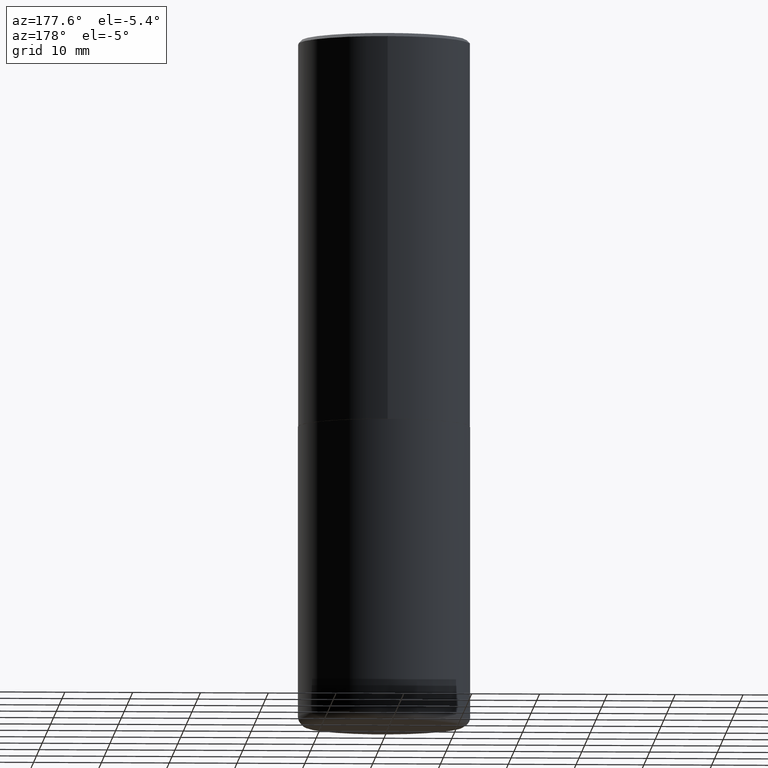
[diagram: clean part render]
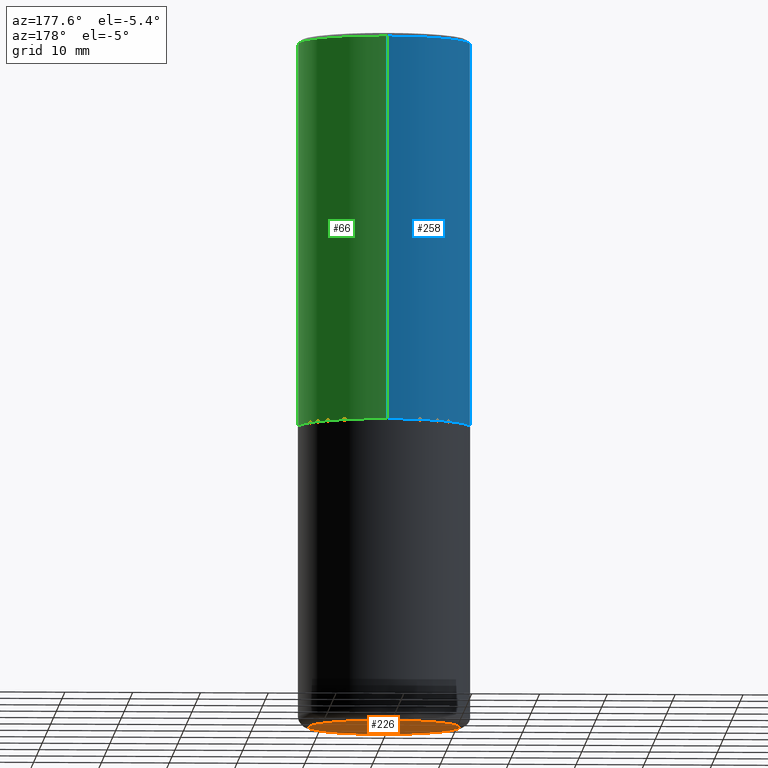
[diagram: same view with three faces highlighted in distinct colors, each labeled with its STEP entity id]
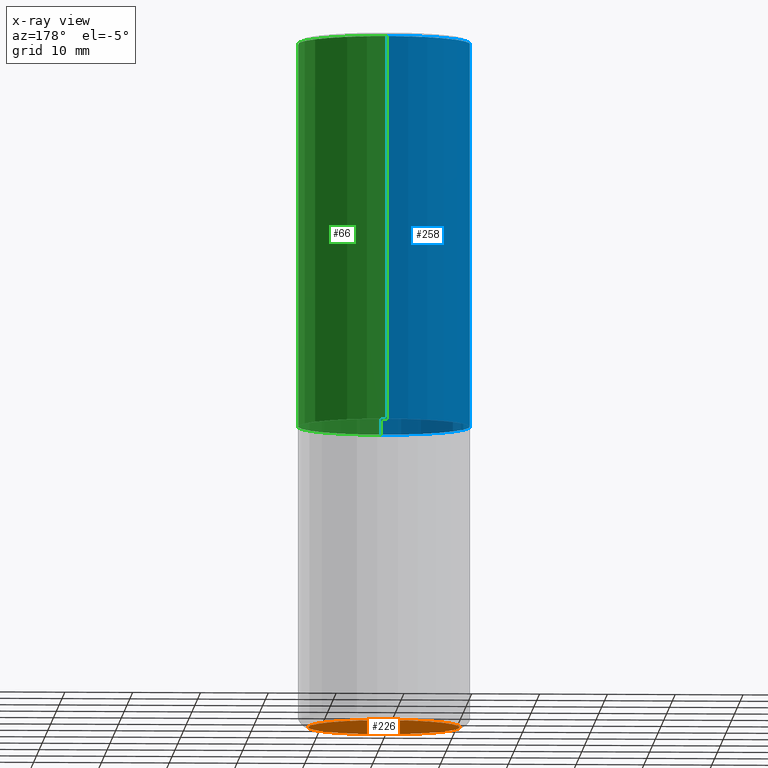
[diagram: x-ray of the same camera — body ghosted, the three highlighted faces saturated]
A machine part, auxiliary view with three faces highlighted in distinct colors.
The next image is the same camera in x-ray (body ghosted, the three faces saturated) — at least one of them is partly hidden behind the body in this view.
Their STEP definitions:

[orange] entity #226 — the highlighted planar face has unit normal (0, -0, -1).
#55 = CARTESIAN_POINT ( 'NONE',  ( 0.4400000000000000022, -1.703842893355454063E-14, -4.000000000000000000 ) ) ;
#56 = AXIS2_PLACEMENT_3D ( 'NONE', #163, #361, #331 ) ;
#65 = DIRECTION ( 'NONE',  ( -2.445468806185136597E-29, 3.491481338843145583E-15, 1.000000000000000000 ) ) ;
#70 = DIRECTION ( 'NONE',  ( 1.000000000000000000, -6.982962677686266711E-15, 0.000000000000000000 ) ) ;
#79 = FACE_OUTER_BOUND ( 'NONE', #190, .T. ) ;
#109 = CARTESIAN_POINT ( 'NONE',  ( 9.781875224740546387E-29, -1.396592535537258233E-14, -4.000000000000000000 ) ) ;
#150 = VERTEX_POINT ( 'NONE', #55 ) ;
#153 = ORIENTED_EDGE ( 'NONE', *, *, #195, .F. ) ;
#155 = DIRECTION ( 'NONE',  ( 1.000000000000000000, -6.982962677686266711E-15, 0.000000000000000000 ) ) ;
#163 = CARTESIAN_POINT ( 'NONE',  ( 9.781875224740546387E-29, -1.396592535537258233E-14, -4.000000000000000000 ) ) ;
#188 = ORIENTED_EDGE ( 'NONE', *, *, #415, .F. ) ;
#190 = EDGE_LOOP ( 'NONE', ( #188, #153 ) ) ;
#195 = EDGE_CURVE ( 'NONE', #391, #150, #261, .T. ) ;
#226 = ADVANCED_FACE ( 'NONE', ( #79 ), #239, .T. ) ;
#239 = PLANE ( 'NONE',  #56 ) ;
#249 = AXIS2_PLACEMENT_3D ( 'NONE', #109, #357, #70 ) ;
#261 = CIRCLE ( 'NONE', #249, 0.4400000000000000022 ) ;
#331 = DIRECTION ( 'NONE',  ( -1.000000000000000000, 6.982962677686265922E-15, -4.876176775795935793E-29 ) ) ;
#350 = CARTESIAN_POINT ( 'NONE',  ( 9.781875224740546387E-29, -1.396592535537258233E-14, -4.000000000000000000 ) ) ;
#357 = DIRECTION ( 'NONE',  ( -2.445468806185136597E-29, 3.491481338843145583E-15, 1.000000000000000000 ) ) ;
#361 = DIRECTION ( 'NONE',  ( 2.438088387897960049E-29, -3.491481338843145188E-15, -1.000000000000000000 ) ) ;
#370 = AXIS2_PLACEMENT_3D ( 'NONE', #350, #65, #155 ) ;
#386 = CIRCLE ( 'NONE', #370, 0.4400000000000000022 ) ;
#387 = CARTESIAN_POINT ( 'NONE',  ( -0.4400000000000000022, -1.052163005713481828E-14, -4.000000000000000000 ) ) ;
#391 = VERTEX_POINT ( 'NONE', #387 ) ;
#415 = EDGE_CURVE ( 'NONE', #150, #391, #386, .T. ) ;

[blue] entity #258 — the highlighted cylindrical surface (partial cylindrical patch) has radius 12.7 mm, axis along (-0, 0, 1).
#3 = DIRECTION ( 'NONE',  ( -6.982962677686265922E-15, -1.000000000000000000, 3.491643216902136408E-15 ) ) ;
#10 = EDGE_CURVE ( 'NONE', #362, #141, #398, .T. ) ;
#23 = DIRECTION ( 'NONE',  ( -2.446529474774470711E-29, 3.489962401053712253E-15, 1.000000000000000000 ) ) ;
#38 = CYLINDRICAL_SURFACE ( 'NONE', #231, 0.5000000000000001110 ) ;
#49 = DIRECTION ( 'NONE',  ( -6.982962677686266711E-15, -1.000000000000000000, 3.278217592397114284E-15 ) ) ;
#57 = CARTESIAN_POINT ( 'NONE',  ( 4.893058949548968117E-31, -6.979924802107460893E-17, -0.02000000000000010797 ) ) ;
#77 = EDGE_CURVE ( 'NONE', #410, #158, #280, .T. ) ;
#93 = VECTOR ( 'NONE', #254, 39.37007874015748143 ) ;
#99 = EDGE_CURVE ( 'NONE', #362, #410, #213, .T. ) ;
#140 = CARTESIAN_POINT ( 'NONE',  ( 0.000000000000000000, 0.000000000000000000, 0.000000000000000000 ) ) ;
#141 = VERTEX_POINT ( 'NONE', #180 ) ;
#144 = AXIS2_PLACEMENT_3D ( 'NONE', #378, #146, #49 ) ;
#146 = DIRECTION ( 'NONE',  ( -2.446529474774470711E-29, 3.489962401053712253E-15, 1.000000000000000000 ) ) ;
#158 = VERTEX_POINT ( 'NONE', #414 ) ;
#167 = DIRECTION ( 'NONE',  ( -6.982962677686265922E-15, -1.000000000000000000, 3.489962401053712253E-15 ) ) ;
#168 = ORIENTED_EDGE ( 'NONE', *, *, #344, .F. ) ;
#180 = CARTESIAN_POINT ( 'NONE',  ( 3.491481338843133355E-15, 0.4999999999999999445, -0.02000000000000185310 ) ) ;
#194 = CIRCLE ( 'NONE', #291, 0.5000000000000000000 ) ;
#211 = ORIENTED_EDGE ( 'NONE', *, *, #77, .T. ) ;
#213 = CIRCLE ( 'NONE', #144, 0.5000000000000002220 ) ;
#231 = AXIS2_PLACEMENT_3D ( 'NONE', #140, #338, #167 ) ;
#238 = CARTESIAN_POINT ( 'NONE',  ( 3.552713678800530117E-15, 0.4999999999999925060, -2.249000000000001442 ) ) ;
#246 = FACE_OUTER_BOUND ( 'NONE', #400, .T. ) ;
#254 = DIRECTION ( 'NONE',  ( -2.446529474774470711E-29, 3.489962401053712253E-15, 1.000000000000000000 ) ) ;
#258 = ADVANCED_FACE ( 'NONE', ( #246 ), #38, .T. ) ;
#277 = DIRECTION ( 'NONE',  ( -2.446529474774470711E-29, 3.489962401053712253E-15, 1.000000000000000000 ) ) ;
#280 = LINE ( 'NONE', #342, #93 ) ;
#289 = VECTOR ( 'NONE', #277, 39.37007874015748143 ) ;
#291 = AXIS2_PLACEMENT_3D ( 'NONE', #57, #23, #3 ) ;
#302 = ORIENTED_EDGE ( 'NONE', *, *, #10, .F. ) ;
#332 = CARTESIAN_POINT ( 'NONE',  ( 3.552713678800501718E-15, 0.5000000000000001110, -1.744981200526856521E-15 ) ) ;
#338 = DIRECTION ( 'NONE',  ( -2.446529474774470711E-29, 3.489962401053712253E-15, 1.000000000000000000 ) ) ;
#342 = CARTESIAN_POINT ( 'NONE',  ( -3.491481338843133750E-15, -0.5000000000000001110, 1.744981200526856521E-15 ) ) ;
#344 = EDGE_CURVE ( 'NONE', #141, #158, #194, .T. ) ;
#356 = CARTESIAN_POINT ( 'NONE',  ( -3.491481338843080107E-15, -0.5000000000000081046, -2.248999999999998334 ) ) ;
#362 = VERTEX_POINT ( 'NONE', #238 ) ;
#378 = CARTESIAN_POINT ( 'NONE',  ( 5.502244788767783920E-29, -7.848925439969798022E-15, -2.249000000000000110 ) ) ;
#395 = ORIENTED_EDGE ( 'NONE', *, *, #99, .T. ) ;
#398 = LINE ( 'NONE', #332, #289 ) ;
#400 = EDGE_LOOP ( 'NONE', ( #302, #395, #211, #168 ) ) ;
#410 = VERTEX_POINT ( 'NONE', #356 ) ;
#414 = CARTESIAN_POINT ( 'NONE',  ( -3.430248998885764992E-15, -0.5000000000000001110, -0.01999999999999835937 ) ) ;

[green] entity #66 — the highlighted cylindrical surface (partial cylindrical patch) has radius 12.7 mm, axis along (-0, 0, 1).
#8 = CARTESIAN_POINT ( 'NONE',  ( 0.000000000000000000, 0.000000000000000000, 0.000000000000000000 ) ) ;
#10 = EDGE_CURVE ( 'NONE', #362, #141, #398, .T. ) ;
#21 = AXIS2_PLACEMENT_3D ( 'NONE', #8, #340, #76 ) ;
#66 = ADVANCED_FACE ( 'NONE', ( #252 ), #312, .T. ) ;
#73 = ORIENTED_EDGE ( 'NONE', *, *, #149, .T. ) ;
#76 = DIRECTION ( 'NONE',  ( -6.982962677686265922E-15, -1.000000000000000000, 3.489962401053712253E-15 ) ) ;
#77 = EDGE_CURVE ( 'NONE', #410, #158, #280, .T. ) ;
#93 = VECTOR ( 'NONE', #254, 39.37007874015748143 ) ;
#110 = AXIS2_PLACEMENT_3D ( 'NONE', #343, #179, #290 ) ;
#115 = ORIENTED_EDGE ( 'NONE', *, *, #396, .F. ) ;
#141 = VERTEX_POINT ( 'NONE', #180 ) ;
#149 = EDGE_CURVE ( 'NONE', #410, #362, #269, .T. ) ;
#158 = VERTEX_POINT ( 'NONE', #414 ) ;
#177 = AXIS2_PLACEMENT_3D ( 'NONE', #230, #234, #413 ) ;
#179 = DIRECTION ( 'NONE',  ( -2.446529474774470711E-29, 3.489962401053712253E-15, 1.000000000000000000 ) ) ;
#180 = CARTESIAN_POINT ( 'NONE',  ( 3.491481338843133355E-15, 0.4999999999999999445, -0.02000000000000185310 ) ) ;
#220 = CIRCLE ( 'NONE', #177, 0.5000000000000000000 ) ;
#230 = CARTESIAN_POINT ( 'NONE',  ( 4.893058949548968117E-31, -6.979924802107460893E-17, -0.02000000000000010797 ) ) ;
#234 = DIRECTION ( 'NONE',  ( -2.446529474774470711E-29, 3.489962401053712253E-15, 1.000000000000000000 ) ) ;
#238 = CARTESIAN_POINT ( 'NONE',  ( 3.552713678800530117E-15, 0.4999999999999925060, -2.249000000000001442 ) ) ;
#252 = FACE_OUTER_BOUND ( 'NONE', #385, .T. ) ;
#254 = DIRECTION ( 'NONE',  ( -2.446529474774470711E-29, 3.489962401053712253E-15, 1.000000000000000000 ) ) ;
#269 = CIRCLE ( 'NONE', #110, 0.5000000000000002220 ) ;
#277 = DIRECTION ( 'NONE',  ( -2.446529474774470711E-29, 3.489962401053712253E-15, 1.000000000000000000 ) ) ;
#280 = LINE ( 'NONE', #342, #93 ) ;
#289 = VECTOR ( 'NONE', #277, 39.37007874015748143 ) ;
#290 = DIRECTION ( 'NONE',  ( -6.982962677686266711E-15, -1.000000000000000000, 3.278217592397114284E-15 ) ) ;
#298 = ORIENTED_EDGE ( 'NONE', *, *, #77, .F. ) ;
#312 = CYLINDRICAL_SURFACE ( 'NONE', #21, 0.5000000000000001110 ) ;
#332 = CARTESIAN_POINT ( 'NONE',  ( 3.552713678800501718E-15, 0.5000000000000001110, -1.744981200526856521E-15 ) ) ;
#340 = DIRECTION ( 'NONE',  ( -2.446529474774470711E-29, 3.489962401053712253E-15, 1.000000000000000000 ) ) ;
#342 = CARTESIAN_POINT ( 'NONE',  ( -3.491481338843133750E-15, -0.5000000000000001110, 1.744981200526856521E-15 ) ) ;
#343 = CARTESIAN_POINT ( 'NONE',  ( 5.502244788767783920E-29, -7.848925439969798022E-15, -2.249000000000000110 ) ) ;
#356 = CARTESIAN_POINT ( 'NONE',  ( -3.491481338843080107E-15, -0.5000000000000081046, -2.248999999999998334 ) ) ;
#358 = ORIENTED_EDGE ( 'NONE', *, *, #10, .T. ) ;
#362 = VERTEX_POINT ( 'NONE', #238 ) ;
#385 = EDGE_LOOP ( 'NONE', ( #73, #358, #115, #298 ) ) ;
#396 = EDGE_CURVE ( 'NONE', #158, #141, #220, .T. ) ;
#398 = LINE ( 'NONE', #332, #289 ) ;
#410 = VERTEX_POINT ( 'NONE', #356 ) ;
#413 = DIRECTION ( 'NONE',  ( -6.982962677686265922E-15, -1.000000000000000000, 3.491643216902136408E-15 ) ) ;
#414 = CARTESIAN_POINT ( 'NONE',  ( -3.430248998885764992E-15, -0.5000000000000001110, -0.01999999999999835937 ) ) ;